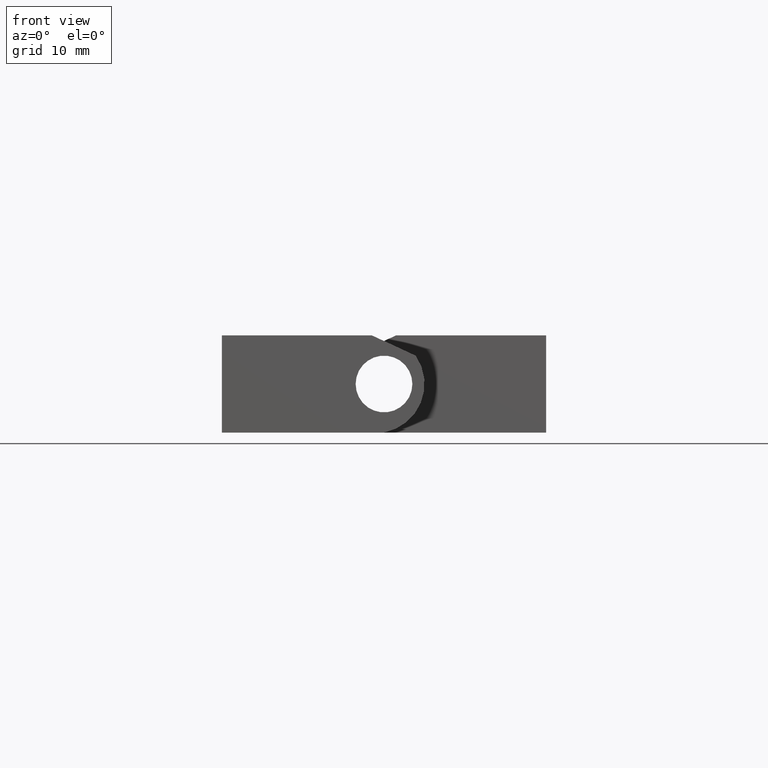
[diagram: clean part render]
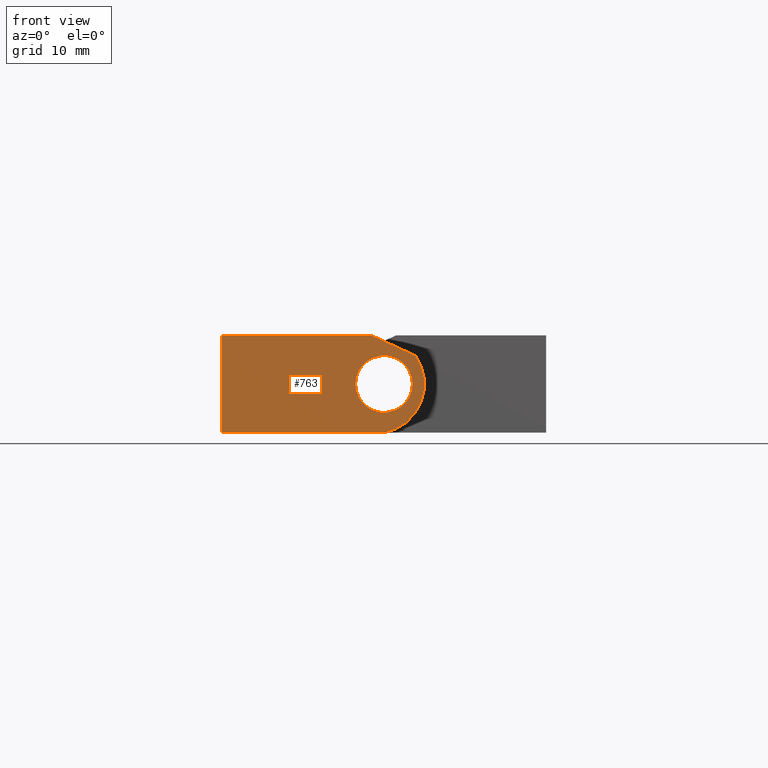
[diagram: same view with one face highlighted and labeled with its STEP entity id]
A machine part, front view. The second image highlights one B-rep face of the part: STEP entity #763.
In plain terms, the highlighted planar face has unit normal (0, -1, 0).
Its self-contained STEP definition (entity closure, byte-faithful):
#499=CARTESIAN_POINT('',(-19.999959999920065,3.673933E-016,-5.999987999976383));
#500=VERTEX_POINT('',#499);
#517=CARTESIAN_POINT('',(-0.000002618212875,3.673933E-016,-5.999987999976383));
#518=VERTEX_POINT('',#517);
#525=CARTESIAN_POINT('',(-19.999959999920065,3.673933E-016,-5.999987999976383));
#526=DIRECTION('',(1.0,0.0,0.0));
#527=VECTOR('',#526,19.999957381707191);
#528=LINE('',#525,#527);
#529=EDGE_CURVE('',#500,#518,#528,.T.);
#589=CARTESIAN_POINT('',(3.912713944059760,-2.128436E-016,3.475999443448927));
#590=VERTEX_POINT('',#589);
#597=CARTESIAN_POINT('',(-1.099998098277865,-2.615181E-023,0.000000427091436));
#598=DIRECTION('',(-1.224647E-016,-1.0,-6.123234E-017));
#599=DIRECTION('',(0.180327488483690,3.814479E-017,-0.983606627111248));
#600=AXIS2_PLACEMENT_3D('',#597,#598,#599);
#601=CIRCLE('',#600,6.099987801718248);
#602=EDGE_CURVE('',#518,#590,#601,.T.);
#621=CARTESIAN_POINT('',(-1.499996999993982,-3.673933E-016,5.999987999975929));
#622=VERTEX_POINT('',#621);
#629=CARTESIAN_POINT('',(3.912713944059760,-2.128436E-016,3.475999443448927));
#630=DIRECTION('',(-0.906307787553863,8.511279E-017,0.422618260631533));
#631=VECTOR('',#630,5.972265733987262);
#632=LINE('',#629,#631);
#633=EDGE_CURVE('',#590,#622,#632,.T.);
#652=CARTESIAN_POINT('',(-19.999959999920065,-3.673933E-016,5.999987999975929));
#653=VERTEX_POINT('',#652);
#660=CARTESIAN_POINT('',(-1.499996999993982,-3.673933E-016,5.999987999975929));
#661=DIRECTION('',(-1.0,0.0,0.0));
#662=VECTOR('',#661,18.499962999926083);
#663=LINE('',#660,#662);
#664=EDGE_CURVE('',#622,#653,#663,.T.);
#722=CARTESIAN_POINT('',(-19.999959999920065,-3.673933E-016,5.999987999975929));
#723=DIRECTION('',(0.0,0.0,-1.0));
#724=VECTOR('',#723,11.999975999952312);
#725=LINE('',#722,#724);
#726=EDGE_CURVE('',#653,#500,#725,.T.);
#731=CARTESIAN_POINT('',(7.499989406390796,-4.408723E-016,7.199990332646394));
#732=DIRECTION('',(0.0,-1.0,0.0));
#733=DIRECTION('',(-1.0,0.0,0.0));
#734=AXIS2_PLACEMENT_3D('',#731,#732,#733);
#735=PLANE('',#734);
#736=ORIENTED_EDGE('',*,*,#529,.T.);
#737=ORIENTED_EDGE('',*,*,#602,.T.);
#738=ORIENTED_EDGE('',*,*,#633,.T.);
#739=ORIENTED_EDGE('',*,*,#664,.T.);
#740=ORIENTED_EDGE('',*,*,#726,.T.);
#741=EDGE_LOOP('',(#736,#737,#738,#739,#740));
#742=FACE_OUTER_BOUND('',#741,.T.);
#743=CARTESIAN_POINT('',(3.499992999985807,-4.286255E-016,-2.624574E-032));
#744=VERTEX_POINT('',#743);
#745=CARTESIAN_POINT('',(-3.499992999985807,0.0,0.0));
#746=VERTEX_POINT('',#745);
#747=CARTESIAN_POINT('',(0.0,0.0,0.0));
#748=DIRECTION('',(-1.224647E-016,-1.0,-6.123234E-017));
#749=DIRECTION('',(-1.0,1.224647E-016,7.498799E-033));
#750=AXIS2_PLACEMENT_3D('',#747,#748,#749);
#751=CIRCLE('',#750,3.499992999985807);
#752=EDGE_CURVE('',#744,#746,#751,.T.);
#753=ORIENTED_EDGE('',*,*,#752,.F.);
#754=CARTESIAN_POINT('',(0.0,0.0,0.0));
#755=DIRECTION('',(-1.224647E-016,-1.0,-6.123234E-017));
#756=DIRECTION('',(-1.0,1.224647E-016,7.498799E-033));
#757=AXIS2_PLACEMENT_3D('',#754,#755,#756);
#758=CIRCLE('',#757,3.499992999985807);
#759=EDGE_CURVE('',#746,#744,#758,.T.);
#760=ORIENTED_EDGE('',*,*,#759,.F.);
#761=EDGE_LOOP('',(#753,#760));
#762=FACE_BOUND('',#761,.T.);
#763=ADVANCED_FACE('',(#742,#762),#735,.T.);